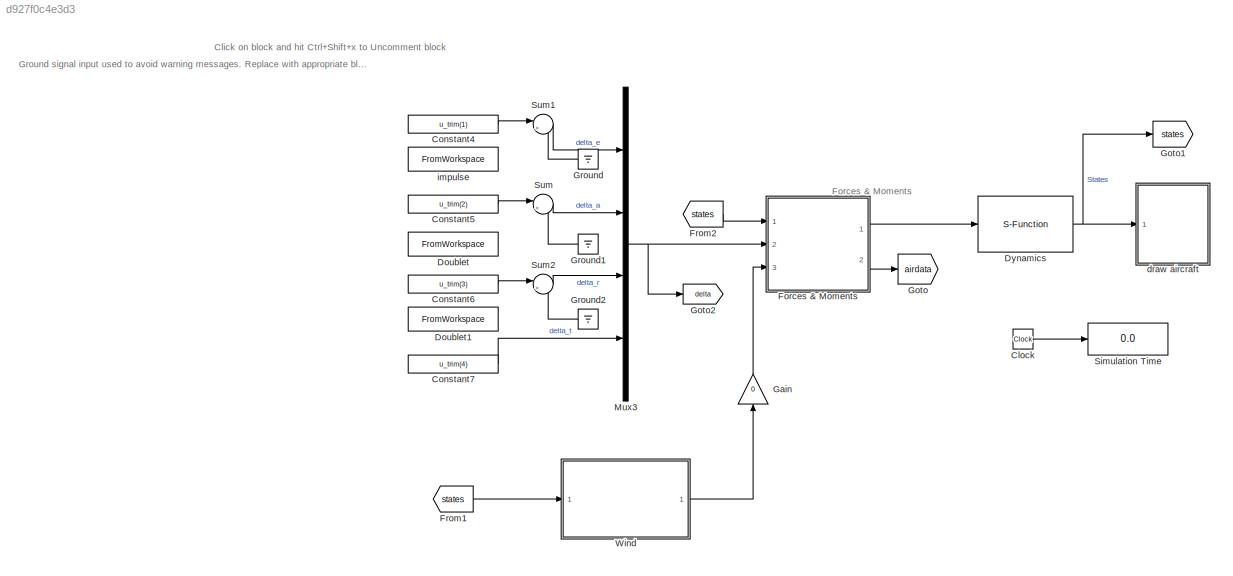
MODEL slx_d927f0c4e3d3
KIND model
CONFIG AbsTol = auto
CONFIG EnableMultiTasking = on
CONFIG FixedStep = auto
CONFIG InitFcn = param_chap5\naerosonde
CONFIG MaxStep = auto
CONFIG MinStep = auto
CONFIG RelTol = 1e-3
CONFIG SampleTimeConstraint = Unconstrained
CONFIG Solver = ode45
CONFIG SolverName = ode45
CONFIG StartTime = 0.0
CONFIG StopTime = 10000
BLOCK [Clock] Clock
BLOCK [Constant] Constant4
  Value = u_trim(1)
BLOCK [Constant] Constant5
  Value = u_trim(2)
BLOCK [Constant] Constant6
  Value = u_trim(3)
BLOCK [Constant] Constant7
  Value = u_trim(4)
BLOCK [FromWorkspace] Doublet
  Commented = on
  SampleTime = 0
  VariableName = [0, 0; 1.0, 0; 1.01, 35; 1.02, 35; 1.03, -35; 1.04, -35; 1.05, 0; 1.06, 0]
  ZeroCross = on
BLOCK [FromWorkspace] Doublet1
  Commented = on
  SampleTime = 0
  VariableName = [0, 0; 10.0, 0; 10.01, 0.1; 10.5, 0.1; 10.51, -0.1; 11.0, -0.1; 11.01, 0; 11.5, 0]
  ZeroCross = on
BLOCK [S-Function] Dynamics
  EnableBusSupport = off
  FunctionName = mav_dynamics
  Parameters = P
  Ports = [1, 1]
  SFcnIsStateOwnerBlock = off
  SFunctionDeploymentMode = off
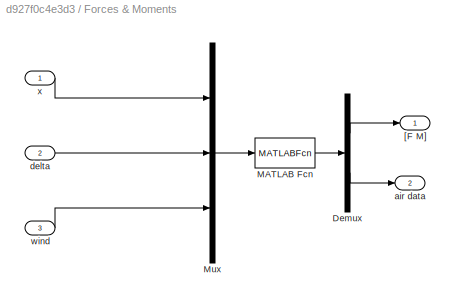
BLOCK [SubSystem] Forces & Moments
  Ports = [3, 2]
  RequestExecContextInheritance = off
BLOCK [Demux] Forces & Moments/Demux
  DisplayOption = bar
  Outputs = [6;6]
  Ports = [1, 2]
BLOCK [MATLABFcn] Forces & Moments/MATLAB Fcn
  MATLABFcn = forces_moments(u(1:12),u(13:16),u(17:19),P)
  OutputDimensions = 12
  Ports = [1, 1]
BLOCK [Mux] Forces & Moments/Mux
  DisplayOption = bar
  Inputs = 3
  Ports = [3, 1]
BLOCK [Outport] Forces & Moments/[F M]
  IconDisplay = Port number
BLOCK [Outport] Forces & Moments/air data
  IconDisplay = Port number
  Port = 2
BLOCK [Inport] Forces & Moments/delta
  IconDisplay = Port number
  Port = 2
BLOCK [Inport] Forces & Moments/wind
  IconDisplay = Port number
  Port = 3
BLOCK [Inport] Forces & Moments/x
  IconDisplay = Port number
BLOCK [From] From1
  GotoTag = states
BLOCK [From] From2
  GotoTag = states
BLOCK [Gain] Gain
  Gain = 0
  OutDataTypeStr = Inherit: Inherit via internal rule
  ParamDataTypeStr = Inherit: Inherit via internal rule
  SaturateOnIntegerOverflow = off
BLOCK [Goto] Goto
  GotoTag = airdata
  TagVisibility = global
BLOCK [Goto] Goto1
  GotoTag = states
BLOCK [Goto] Goto2
  GotoTag = delta
  TagVisibility = global
BLOCK [Ground] Ground
BLOCK [Ground] Ground1
BLOCK [Ground] Ground2
BLOCK [Mux] Mux3
  DisplayOption = bar
  Ports = [4, 1]
BLOCK [Display] Simulation Time
  Decimation = 1
  Ports = [1]
BLOCK [Sum] Sum
  IconShape = round
  InputSameDT = off
  Inputs = |++
  OutDataTypeStr = Inherit: Inherit via internal rule
  Ports = [2, 1]
  SaturateOnIntegerOverflow = off
BLOCK [Sum] Sum1
  IconShape = round
  InputSameDT = off
  Inputs = |++
  OutDataTypeStr = Inherit: Inherit via internal rule
  Ports = [2, 1]
  SaturateOnIntegerOverflow = off
BLOCK [Sum] Sum2
  IconShape = round
  InputSameDT = off
  Inputs = |++
  OutDataTypeStr = Inherit: Inherit via internal rule
  Ports = [2, 1]
  SaturateOnIntegerOverflow = off
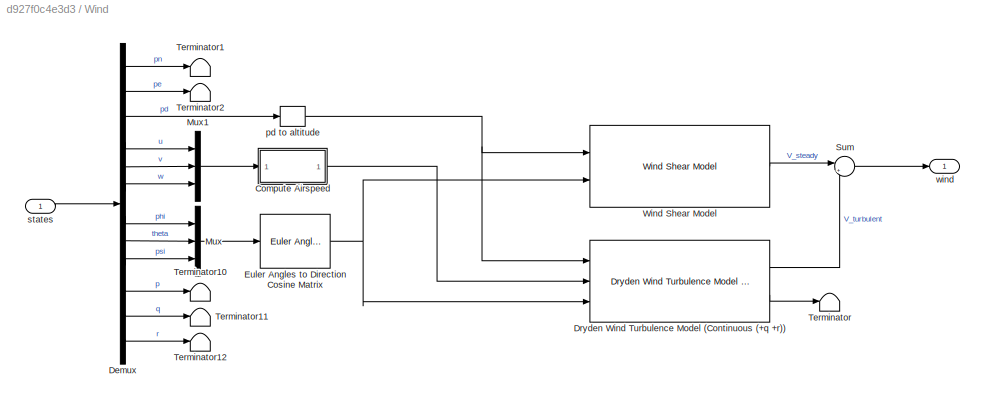
BLOCK [SubSystem] Wind
  Ports = [1, 1]
  RequestExecContextInheritance = off
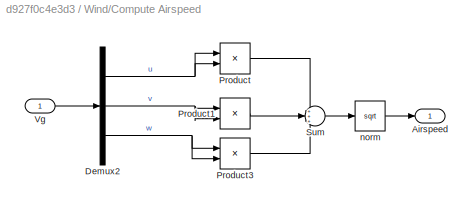
BLOCK [SubSystem] Wind/Compute Airspeed
  Ports = [1, 1]
  RequestExecContextInheritance = off
BLOCK [Outport] Wind/Compute Airspeed/Airspeed
  IconDisplay = Port number
BLOCK [Demux] Wind/Compute Airspeed/Demux2
  DisplayOption = bar
  Outputs = 3
  Ports = [1, 3]
BLOCK [Product] Wind/Compute Airspeed/Product
  InputSameDT = off
  OutDataTypeStr = Inherit: Inherit via internal rule
  Ports = [2, 1]
  SaturateOnIntegerOverflow = off
BLOCK [Product] Wind/Compute Airspeed/Product1
  InputSameDT = off
  OutDataTypeStr = Inherit: Inherit via internal rule
  Ports = [2, 1]
  SaturateOnIntegerOverflow = off
BLOCK [Product] Wind/Compute Airspeed/Product3
  InputSameDT = off
  OutDataTypeStr = Inherit: Inherit via internal rule
  Ports = [2, 1]
  SaturateOnIntegerOverflow = off
BLOCK [Sum] Wind/Compute Airspeed/Sum
  IconShape = round
  InputSameDT = off
  Inputs = +++
  OutDataTypeStr = Inherit: Inherit via internal rule
  Ports = [3, 1]
  SaturateOnIntegerOverflow = off
BLOCK [Inport] Wind/Compute Airspeed/Vg
  IconDisplay = Port number
BLOCK [Sqrt] Wind/Compute Airspeed/norm
  AlgorithmType = Newton-Raphson
BLOCK [Demux] Wind/Demux
  DisplayOption = bar
  Outputs = 12
  Ports = [1, 12]
BLOCK [Reference] Wind/Dryden Wind Turbulence Model (Continuous (+q +r))  REF=aerolibwind2/Dryden Wind Turbulence Model 
(Continuous (+q -r))
  Ports = [3, 2]
  SourceBlock = aerolibwind2/Dryden Wind Turbulence Model \n(Continuous (+q -r))
  SourceProductBaseCode = AE
  SourceProductName = Aerospace Blockset
  SourceType = Wind Turbulence Model
BLOCK [Reference] Wind/Euler Angles to Direction Cosine Matrix  REF=aerolibobsolete/Euler Angles to 
Direction Cosine Matrix
  Ports = [1, 1]
  SourceBlock = aerolibobsolete/Euler Angles to \nDirection Cosine Matrix
  SourceProductBaseCode = AE
  SourceProductName = Aerospace Blockset
  SourceType = Euler2DCM
BLOCK [Mux] Wind/Mux
  DisplayOption = bar
  Inputs = 3
  Ports = [3, 1]
BLOCK [Mux] Wind/Mux1
  DisplayOption = bar
  Inputs = 3
  Ports = [3, 1]
BLOCK [Sum] Wind/Sum
  IconShape = round
  InputSameDT = off
  Inputs = |++
  OutDataTypeStr = Inherit: Inherit via internal rule
  Ports = [2, 1]
  SaturateOnIntegerOverflow = off
BLOCK [Terminator] Wind/Terminator
BLOCK [Terminator] Wind/Terminator1
BLOCK [Terminator] Wind/Terminator10
BLOCK [Terminator] Wind/Terminator11
BLOCK [Terminator] Wind/Terminator12
BLOCK [Terminator] Wind/Terminator2
BLOCK [Reference] Wind/Wind Shear Model  REF=aerolibwind2/Wind Shear Model
  Ports = [2, 1]
  SourceBlock = aerolibwind2/Wind Shear Model
  SourceProductBaseCode = AE
  SourceProductName = Aerospace Blockset
  SourceType = Wind Shear Model
BLOCK [UnaryMinus] Wind/pd to altitude
BLOCK [Inport] Wind/states
  IconDisplay = Port number
BLOCK [Outport] Wind/wind
  IconDisplay = Port number
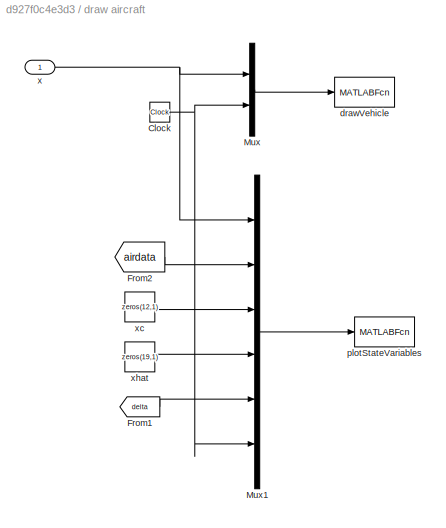
BLOCK [SubSystem] draw aircraft
  Ports = [1]
  RequestExecContextInheritance = off
BLOCK [Clock] draw aircraft/Clock
BLOCK [From] draw aircraft/From1
  GotoTag = delta
  TagVisibility = global
BLOCK [From] draw aircraft/From2
  GotoTag = airdata
  TagVisibility = global
BLOCK [Mux] draw aircraft/Mux
  DisplayOption = bar
  Inputs = 2
  Ports = [2, 1]
BLOCK [Mux] draw aircraft/Mux1
  DisplayOption = bar
  Inputs = 6
  Ports = [6, 1]
BLOCK [MATLABFcn] draw aircraft/drawVehicle
  MATLABFcn = drawVehicle(u)
  OutputDimensions = 0
  Ports = [1]
  SampleTime = 0.1
BLOCK [MATLABFcn] draw aircraft/plotStateVariables
  MATLABFcn = plotmavstatevariables(u)
  OutputDimensions = 0
  Ports = [1]
  SampleTime = 0.1
BLOCK [Inport] draw aircraft/x
  IconDisplay = Port number
BLOCK [Constant] draw aircraft/xc
  Value = zeros(12,1)
BLOCK [Constant] draw aircraft/xhat
  Value = zeros(19,1)
BLOCK [FromWorkspace] impulse
  Commented = on
  SampleTime = 0
  VariableName = [0, 0; 10.0, 0; 10.01, 0.2; 10.5, 0.2; 10.51, 0.0; 13.0, 0.0]
  ZeroCross = on
ANNOTATION (root): Click on block and hit Ctrl+Shift+x to Uncomment block
ANNOTATION (root): Forces & Moments
ANNOTATION (root): Ground signal input used to avoid warning messages. Replace with appropriate block and comment out when needed
LINE Clock:1 -> Simulation Time:1
LINE Constant4:1 -> Sum1:1
LINE Constant5:1 -> Sum:1
LINE Constant6:1 -> Sum2:1
LINE Constant7:1 -> Mux3:4
NET Dynamics:1 -> Goto1:1, draw aircraft:1
LINE Forces & Moments/Demux:1 -> Forces & Moments/[F M]:1
LINE Forces & Moments/Demux:2 -> Forces & Moments/air data:1
LINE Forces & Moments/MATLAB Fcn:1 -> Forces & Moments/Demux:1
LINE Forces & Moments/Mux:1 -> Forces & Moments/MATLAB Fcn:1
LINE Forces & Moments/delta:1 -> Forces & Moments/Mux:2
LINE Forces & Moments/wind:1 -> Forces & Moments/Mux:3
LINE Forces & Moments/x:1 -> Forces & Moments/Mux:1
LINE Forces & Moments:1 -> Dynamics:1
LINE Forces & Moments:2 -> Goto:1
LINE From1:1 -> Wind:1
LINE From2:1 -> Forces & Moments:1
LINE Gain:1 -> Forces & Moments:3
LINE Ground1:1 -> Sum:2
LINE Ground2:1 -> Sum2:2
LINE Ground:1 -> Sum1:2
NET Mux3:1 -> Forces & Moments:2, Goto2:1
LINE Sum1:1 -> Mux3:1
LINE Sum2:1 -> Mux3:3
LINE Sum:1 -> Mux3:2
NET Wind/Compute Airspeed/Demux2:1 -> Wind/Compute Airspeed/Product:1, Wind/Compute Airspeed/Product:2
NET Wind/Compute Airspeed/Demux2:2 -> Wind/Compute Airspeed/Product1:1, Wind/Compute Airspeed/Product1:2
NET Wind/Compute Airspeed/Demux2:3 -> Wind/Compute Airspeed/Product3:1, Wind/Compute Airspeed/Product3:2
LINE Wind/Compute Airspeed/Product1:1 -> Wind/Compute Airspeed/Sum:2
LINE Wind/Compute Airspeed/Product3:1 -> Wind/Compute Airspeed/Sum:3
LINE Wind/Compute Airspeed/Product:1 -> Wind/Compute Airspeed/Sum:1
LINE Wind/Compute Airspeed/Sum:1 -> Wind/Compute Airspeed/norm:1
LINE Wind/Compute Airspeed/Vg:1 -> Wind/Compute Airspeed/Demux2:1
LINE Wind/Compute Airspeed/norm:1 -> Wind/Compute Airspeed/Airspeed:1
LINE Wind/Compute Airspeed:1 -> Wind/Dryden Wind Turbulence Model (Continuous (+q +r)):2
LINE Wind/Demux:1 -> Wind/Terminator1:1
LINE Wind/Demux:10 -> Wind/Terminator10:1
LINE Wind/Demux:11 -> Wind/Terminator11:1
LINE Wind/Demux:12 -> Wind/Terminator12:1
LINE Wind/Demux:2 -> Wind/Terminator2:1
LINE Wind/Demux:3 -> Wind/pd to altitude:1
LINE Wind/Demux:4 -> Wind/Mux1:1
LINE Wind/Demux:5 -> Wind/Mux1:2
LINE Wind/Demux:6 -> Wind/Mux1:3
LINE Wind/Demux:7 -> Wind/Mux:1
LINE Wind/Demux:8 -> Wind/Mux:2
LINE Wind/Demux:9 -> Wind/Mux:3
LINE Wind/Dryden Wind Turbulence Model (Continuous (+q +r)):1 -> Wind/Sum:2
LINE Wind/Dryden Wind Turbulence Model (Continuous (+q +r)):2 -> Wind/Terminator:1
NET Wind/Euler Angles to Direction Cosine Matrix:1 -> Wind/Dryden Wind Turbulence Model (Continuous (+q +r)):3, Wind/Wind Shear Model:2
LINE Wind/Mux1:1 -> Wind/Compute Airspeed:1
LINE Wind/Mux:1 -> Wind/Euler Angles to Direction Cosine Matrix:1
LINE Wind/Sum:1 -> Wind/wind:1
LINE Wind/Wind Shear Model:1 -> Wind/Sum:1
NET Wind/pd to altitude:1 -> Wind/Dryden Wind Turbulence Model (Continuous (+q +r)):1, Wind/Wind Shear Model:1
LINE Wind/states:1 -> Wind/Demux:1
LINE Wind:1 -> Gain:1
NET draw aircraft/Clock:1 -> draw aircraft/Mux1:6, draw aircraft/Mux:2
LINE draw aircraft/From1:1 -> draw aircraft/Mux1:5
LINE draw aircraft/From2:1 -> draw aircraft/Mux1:2
LINE draw aircraft/Mux1:1 -> draw aircraft/plotStateVariables:1
LINE draw aircraft/Mux:1 -> draw aircraft/drawVehicle:1
NET draw aircraft/x:1 -> draw aircraft/Mux1:1, draw aircraft/Mux:1
LINE draw aircraft/xc:1 -> draw aircraft/Mux1:3
LINE draw aircraft/xhat:1 -> draw aircraft/Mux1:4
note: NET lines group one-source signal fan-out (src -> all destinations, sorted); 1:1 wires keep LINE
